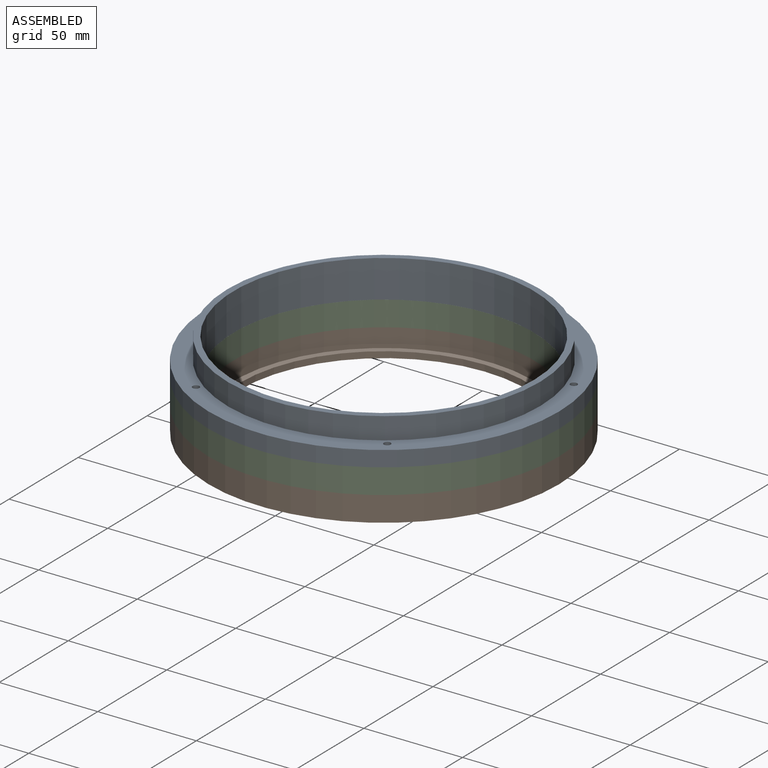
[diagram: assembled view]
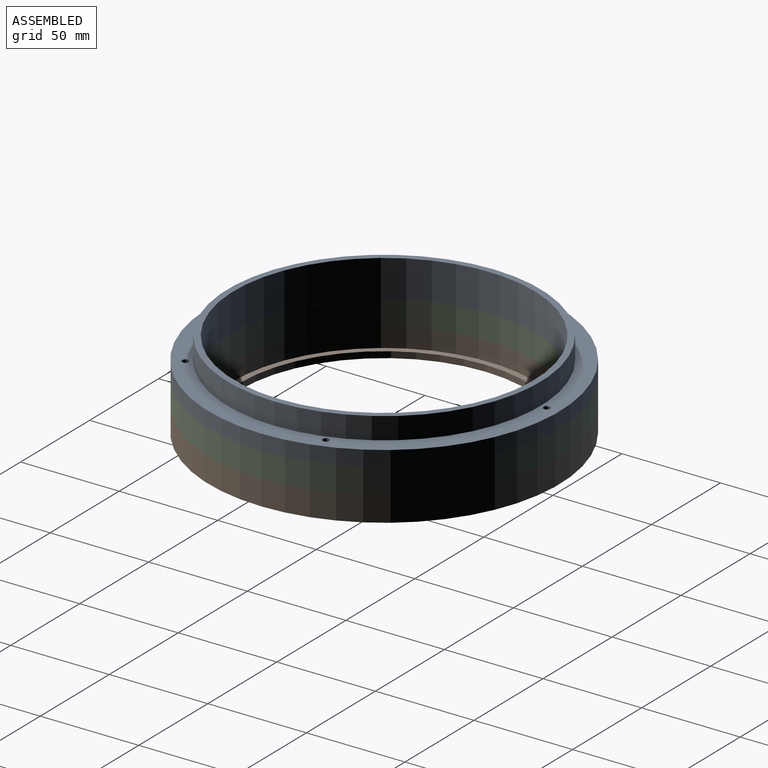
[diagram: assembled view, second angle]
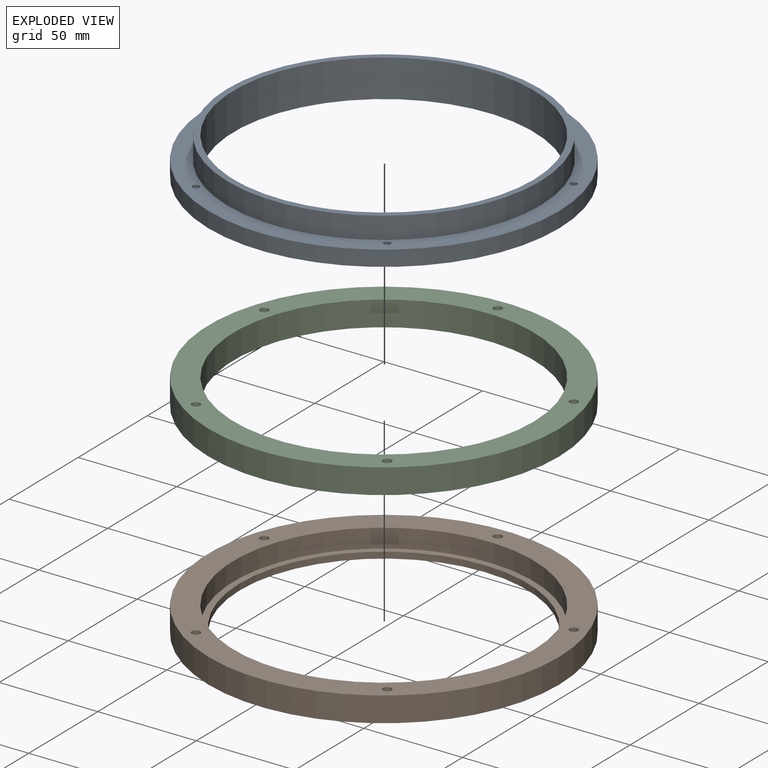
[diagram: exploded view]
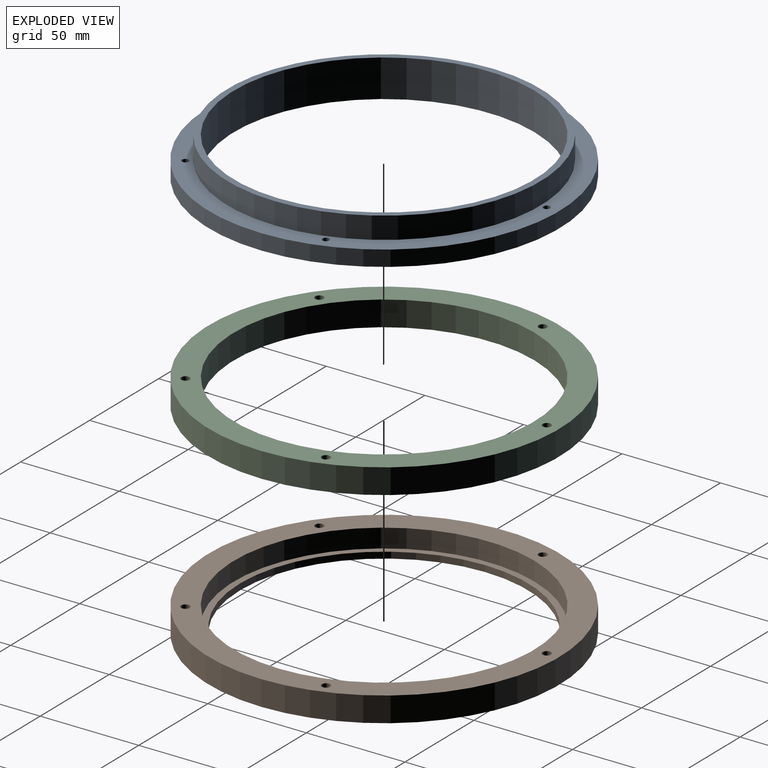
[diagram: exploded view, second angle]
ASSEMBLY  parts=3 mates=2
PART A: 11 faces, bbox 177.8x177.8x19.1 mm
  f0: cylinder r=1.73mm len=7.95mm, axis (0,0,-1), area 86.3mm2, adj f7,f8
  f1: cylinder r=1.73mm len=7.95mm, axis (0,0,-1), area 86.3mm2, adj f7,f8
  f2: cylinder r=1.73mm len=7.95mm, axis (0,0,-1), area 86.3mm2, adj f7,f8
  f3: cylinder r=1.73mm len=7.95mm, axis (0,0,-1), area 86.3mm2, adj f7,f8
  f4: cylinder r=1.73mm len=7.95mm, axis (0,0,-1), area 86.3mm2, adj f7,f8
  f5: cylinder r=76.24mm len=152.48mm, axis (0,0,-1), area 9125.3mm2, adj f8,f10
  f6: cylinder r=88.9mm len=177.8mm, axis (0,0,-1), area 4440.8mm2, adj f7,f8
  f7: plane 177.8x177.8mm, normal (0,0,1), area 4988.5mm2, adj f0,f1,f2,f3,f4,f6,f9
  f8: plane 177.8x177.8mm, normal (0,0,-1), area 6522.1mm2, adj f0,f1,f2,f3,f4,f5,f6
  f9: cylinder r=79.38mm len=158.75mm, axis (0,0,-1), area 5535.8mm2, adj f7,f10
  f10: plane 158.75x158.75mm, normal (0,0,1), area 1533.5mm2, adj f5,f9
PART B: 21 faces, bbox 177.8x177.8x12.7 mm
  f0: cylinder r=3.98mm len=7.95mm, axis (0,0,1), area 111mm2, adj f7,f20
  f1: cylinder r=3.98mm len=7.95mm, axis (0,0,1), area 111mm2, adj f7,f18
  f2: cylinder r=3.98mm len=7.95mm, axis (0,0,1), area 111mm2, adj f7,f16
  f3: cylinder r=3.98mm len=7.95mm, axis (0,0,1), area 111mm2, adj f7,f14
  f4: cylinder r=3.98mm len=7.95mm, axis (0,0,1), area 111mm2, adj f7,f12
  f5: cylinder r=73.06mm len=146.13mm, axis (0,0,1), area 1457.5mm2, adj f7,f10
  f6: cylinder r=88.9mm len=177.8mm, axis (0,0,1), area 7093.9mm2, adj f7,f8
  f7: plane 177.8x177.8mm, normal (0,0,-1), area 7810mm2, adj f0,f1,f2,f3,f4,f5,f6
  f8: plane 177.8x177.8mm, normal (0,0,1), area 6496.2mm2, adj f6,f9,f11,f13,f15,f17,f19
  f9: cylinder r=76.24mm len=152.48mm, axis (0,0,1), area 4562.6mm2, adj f8,f10
  f10: plane 152.48x152.48mm, normal (0,0,1), area 1489.2mm2, adj f5,f9
  f11: cylinder r=2.15mm len=8.26mm, axis (0,0,1), area 111.7mm2, adj f8,f12
  f12: plane 7.95x7.95mm, normal (0,0,-1), area 35.1mm2, adj f4,f11
  f13: cylinder r=2.15mm len=8.26mm, axis (0,0,1), area 111.7mm2, adj f8,f14
  f14: plane 7.95x7.95mm, normal (0,0,-1), area 35.1mm2, adj f3,f13
  f15: cylinder r=2.15mm len=8.26mm, axis (0,0,1), area 111.7mm2, adj f8,f16
  f16: plane 7.95x7.95mm, normal (0,0,-1), area 35.1mm2, adj f2,f15
  f17: cylinder r=2.15mm len=8.26mm, axis (0,0,1), area 111.7mm2, adj f8,f18
  f18: plane 7.95x7.95mm, normal (0,0,-1), area 35.1mm2, adj f1,f17
  f19: cylinder r=2.15mm len=8.26mm, axis (0,0,1), area 111.7mm2, adj f8,f20
  f20: plane 7.95x7.95mm, normal (0,0,-1), area 35.1mm2, adj f0,f19
PART C: 9 faces, bbox 177.8x177.8x12.7 mm
  f0: cylinder r=2.15mm len=12.7mm, axis (0,0,-1), area 171.8mm2, adj f7,f8
  f1: cylinder r=2.15mm len=12.7mm, axis (0,0,-1), area 171.8mm2, adj f7,f8
  f2: cylinder r=2.15mm len=12.7mm, axis (0,0,-1), area 171.8mm2, adj f7,f8
  f3: cylinder r=2.15mm len=12.7mm, axis (0,0,-1), area 171.8mm2, adj f7,f8
  f4: cylinder r=2.15mm len=12.7mm, axis (0,0,-1), area 171.8mm2, adj f7,f8
  f5: cylinder r=76.21mm len=152.43mm, axis (0,0,-1), area 6081.5mm2, adj f7,f8
  f6: cylinder r=88.9mm len=177.8mm, axis (0,0,-1), area 7093.9mm2, adj f7,f8
  f7: plane 177.8x177.8mm, normal (0,0,1), area 6508.3mm2, adj f0,f1,f2,f3,f4,f5,f6
  f8: plane 177.8x177.8mm, normal (0,0,-1), area 6508.3mm2, adj f0,f1,f2,f3,f4,f5,f6
PLACE A t=(-92.3,-75.17,26.88)mm
PLACE B t=(-92.3,-75.17,14.18)mm fixed
PLACE C t=(-92.3,-75.17,14.18)mm
MATE fastened B.f3 <-> C.f1  axis (0,0,1) through (-170.81,-49.66,14.18)mm
MATE fastened C.f2 <-> A.f2  axis (0,0,1) through (-140.82,-141.95,26.88)mm
